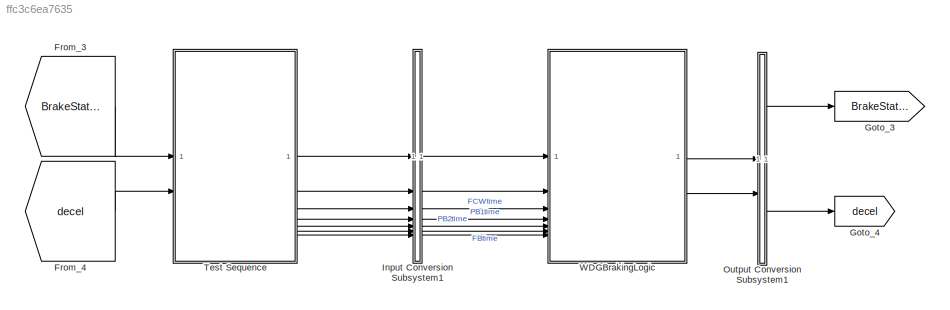
MODEL slx_ffc3c6ea7635
KIND model
BLOCK [From] From_3
  GotoTag = BrakeStatus
BLOCK [From] From_4
  GotoTag = decel
BLOCK [Goto] Goto_3
  GotoTag = BrakeStatus
BLOCK [Goto] Goto_4
  GotoTag = decel
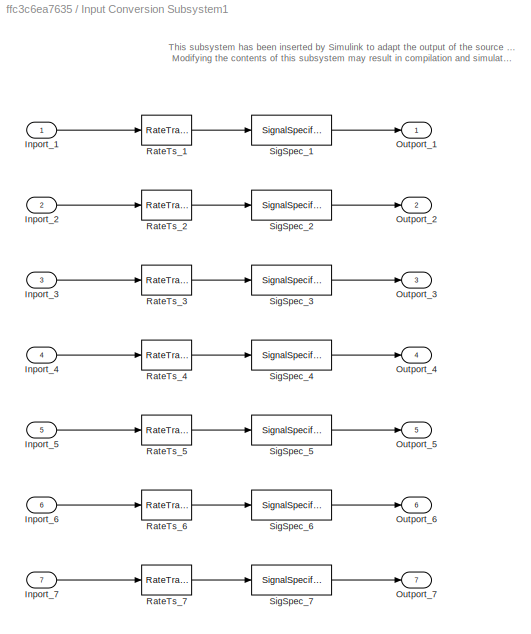
BLOCK [SubSystem] Input Conversion Subsystem1
  AttributesFormatString = %<Description>
  Description = Signal spec.\nand routing
  Permissions = ReadOnly
  PermitHierarchicalResolution = ExplicitOnly
  Tag = __SLT_ICS__
  UserDataPersistent = on
BLOCK [Inport] Input Conversion Subsystem1/Inport_1
BLOCK [Inport] Input Conversion Subsystem1/Inport_2
  Port = 2
BLOCK [Inport] Input Conversion Subsystem1/Inport_3
  Port = 3
BLOCK [Inport] Input Conversion Subsystem1/Inport_4
  Port = 4
BLOCK [Inport] Input Conversion Subsystem1/Inport_5
  Port = 5
BLOCK [Inport] Input Conversion Subsystem1/Inport_6
  Port = 6
BLOCK [Inport] Input Conversion Subsystem1/Inport_7
  Port = 7
BLOCK [Outport] Input Conversion Subsystem1/Outport_1
BLOCK [Outport] Input Conversion Subsystem1/Outport_2
  Port = 2
BLOCK [Outport] Input Conversion Subsystem1/Outport_3
  Port = 3
BLOCK [Outport] Input Conversion Subsystem1/Outport_4
  Port = 4
BLOCK [Outport] Input Conversion Subsystem1/Outport_5
  Port = 5
BLOCK [Outport] Input Conversion Subsystem1/Outport_6
  Port = 6
BLOCK [Outport] Input Conversion Subsystem1/Outport_7
  Port = 7
BLOCK [RateTransition] Input Conversion Subsystem1/RateTs_1
  OutPortSampleTime = 0.1
BLOCK [RateTransition] Input Conversion Subsystem1/RateTs_2
  OutPortSampleTime = 0.1
BLOCK [RateTransition] Input Conversion Subsystem1/RateTs_3
  OutPortSampleTime = 0.1
BLOCK [RateTransition] Input Conversion Subsystem1/RateTs_4
  OutPortSampleTime = 0.1
BLOCK [RateTransition] Input Conversion Subsystem1/RateTs_5
  OutPortSampleTime = 0.1
BLOCK [RateTransition] Input Conversion Subsystem1/RateTs_6
  OutPortSampleTime = 0.1
BLOCK [RateTransition] Input Conversion Subsystem1/RateTs_7
  OutPortSampleTime = 0.1
BLOCK [SignalSpecification] Input Conversion Subsystem1/SigSpec_1
  Dimensions = [1]
  OutDataTypeStr = double
  SampleTime = 0.1
  SignalType = real
  Unit = m
  VarSizeSig = No
BLOCK [SignalSpecification] Input Conversion Subsystem1/SigSpec_2
  Dimensions = [1]
  OutDataTypeStr = double
  SampleTime = 0.1
  SignalType = real
  Unit = s
  VarSizeSig = No
BLOCK [SignalSpecification] Input Conversion Subsystem1/SigSpec_3
  Dimensions = [1]
  OutDataTypeStr = double
  SampleTime = 0.1
  SignalType = real
  Unit = s
  VarSizeSig = No
BLOCK [SignalSpecification] Input Conversion Subsystem1/SigSpec_4
  Dimensions = [1]
  OutDataTypeStr = double
  SampleTime = 0.1
  SignalType = real
  Unit = s
  VarSizeSig = No
BLOCK [SignalSpecification] Input Conversion Subsystem1/SigSpec_5
  Dimensions = [1]
  OutDataTypeStr = double
  SampleTime = 0.1
  SignalType = real
  Unit = s
  VarSizeSig = No
BLOCK [SignalSpecification] Input Conversion Subsystem1/SigSpec_6
  Dimensions = [1]
  OutDataTypeStr = double
  SampleTime = 0.1
  SignalType = real
  Unit = s
  VarSizeSig = No
BLOCK [SignalSpecification] Input Conversion Subsystem1/SigSpec_7
  Dimensions = [1]
  OutDataTypeStr = double
  SampleTime = 0.1
  SignalType = real
  Unit = m/s
  VarSizeSig = No
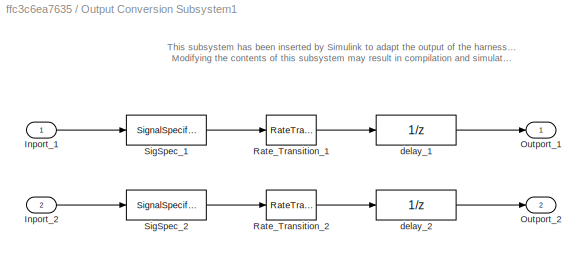
BLOCK [SubSystem] Output Conversion Subsystem1
  AttributesFormatString = %<Description>
  Description = Signal spec.\nand routing
  Permissions = ReadOnly
  PermitHierarchicalResolution = ExplicitOnly
  Tag = __SLT_OCS__
  UserDataPersistent = on
BLOCK [Inport] Output Conversion Subsystem1/Inport_1
BLOCK [Inport] Output Conversion Subsystem1/Inport_2
  Port = 2
BLOCK [Outport] Output Conversion Subsystem1/Outport_1
BLOCK [Outport] Output Conversion Subsystem1/Outport_2
  Port = 2
BLOCK [RateTransition] Output Conversion Subsystem1/Rate_Transition_1
  InitialCondition = BrStatus.NoBrake
  OutPortSampleTimeOpt = Inherit
BLOCK [RateTransition] Output Conversion Subsystem1/Rate_Transition_2
  OutPortSampleTimeOpt = Inherit
BLOCK [SignalSpecification] Output Conversion Subsystem1/SigSpec_1
  Dimensions = [1]
  OutDataTypeStr = Enum: BrStatus
  SampleTime = 0.1
  SignalType = real
  VarSizeSig = No
BLOCK [SignalSpecification] Output Conversion Subsystem1/SigSpec_2
  Dimensions = [1]
  OutDataTypeStr = double
  SampleTime = 0.1
  SignalType = real
  Unit = m/s^2
  VarSizeSig = No
BLOCK [UnitDelay] Output Conversion Subsystem1/delay_1
  InitialCondition = BrStatus.NoBrake
  SampleTime = -1
BLOCK [UnitDelay] Output Conversion Subsystem1/delay_2
  SampleTime = -1
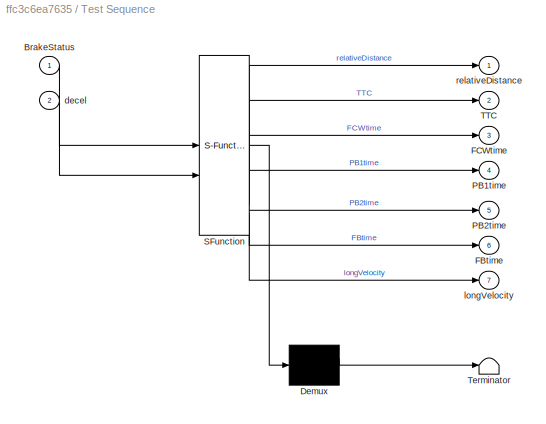
BLOCK [SubSystem] Test Sequence
  ErrorFcn = Stateflow.Translate.translate
  PermitHierarchicalResolution = ExplicitOnly
  SFBlockType = Test Sequence
  ShowPortLabels = none
  TreatAsAtomicUnit = on
BLOCK [Demux] Test Sequence/ Demux 
  Outputs = 1
BLOCK [S-Function] Test Sequence/ SFunction 
  EnableBusSupport = off
  FunctionName = sf_sfun
  PortCounts = [2 8]
  SFcnIsStateOwnerBlock = off
  SFunctionDeploymentMode = off
  Tag = Stateflow S-Function 4
BLOCK [Terminator] Test Sequence/ Terminator 
BLOCK [Inport] Test Sequence/BrakeStatus
BLOCK [Outport] Test Sequence/FBtime
  Port = 6
BLOCK [Outport] Test Sequence/FCWtime
  Port = 3
BLOCK [Outport] Test Sequence/PB1time
  Port = 4
BLOCK [Outport] Test Sequence/PB2time
  Port = 5
BLOCK [Outport] Test Sequence/TTC
  Port = 2
BLOCK [Inport] Test Sequence/decel
  Port = 2
BLOCK [Outport] Test Sequence/longVelocity
  Port = 7
BLOCK [Outport] Test Sequence/relativeDistance
BLOCK [ModelReference] WDGBrakingLogic
  ModelNameDialog = WDGBrakingLogic
  ModelReferenceVersion = 8.0
ANNOTATION Input Conversion Subsystem1: This subsystem has been inserted by Simulink to adapt the output of the source blocks to the interface required by the harnessed component. Modifying the contents of this subsystem may result in compilation and simulation failure.
ANNOTATION Output Conversion Subsystem1: This subsystem has been inserted by Simulink to adapt the output of the harnessed component to the interface required by the sink blocks. Modifying the contents of this subsystem may result in compilation and simulation failure.
LINE From_3:1 -> Test Sequence:1
LINE From_4:1 -> Test Sequence:2
LINE Input Conversion Subsystem1/Inport_1:1 -> Input Conversion Subsystem1/RateTs_1:1
LINE Input Conversion Subsystem1/Inport_2:1 -> Input Conversion Subsystem1/RateTs_2:1
LINE Input Conversion Subsystem1/Inport_3:1 -> Input Conversion Subsystem1/RateTs_3:1
LINE Input Conversion Subsystem1/Inport_4:1 -> Input Conversion Subsystem1/RateTs_4:1
LINE Input Conversion Subsystem1/Inport_5:1 -> Input Conversion Subsystem1/RateTs_5:1
LINE Input Conversion Subsystem1/Inport_6:1 -> Input Conversion Subsystem1/RateTs_6:1
LINE Input Conversion Subsystem1/Inport_7:1 -> Input Conversion Subsystem1/RateTs_7:1
LINE Input Conversion Subsystem1/RateTs_1:1 -> Input Conversion Subsystem1/SigSpec_1:1
LINE Input Conversion Subsystem1/RateTs_2:1 -> Input Conversion Subsystem1/SigSpec_2:1
LINE Input Conversion Subsystem1/RateTs_3:1 -> Input Conversion Subsystem1/SigSpec_3:1
LINE Input Conversion Subsystem1/RateTs_4:1 -> Input Conversion Subsystem1/SigSpec_4:1
LINE Input Conversion Subsystem1/RateTs_5:1 -> Input Conversion Subsystem1/SigSpec_5:1
LINE Input Conversion Subsystem1/RateTs_6:1 -> Input Conversion Subsystem1/SigSpec_6:1
LINE Input Conversion Subsystem1/RateTs_7:1 -> Input Conversion Subsystem1/SigSpec_7:1
LINE Input Conversion Subsystem1/SigSpec_1:1 -> Input Conversion Subsystem1/Outport_1:1
LINE Input Conversion Subsystem1/SigSpec_2:1 -> Input Conversion Subsystem1/Outport_2:1
LINE Input Conversion Subsystem1/SigSpec_3:1 -> Input Conversion Subsystem1/Outport_3:1
LINE Input Conversion Subsystem1/SigSpec_4:1 -> Input Conversion Subsystem1/Outport_4:1
LINE Input Conversion Subsystem1/SigSpec_5:1 -> Input Conversion Subsystem1/Outport_5:1
LINE Input Conversion Subsystem1/SigSpec_6:1 -> Input Conversion Subsystem1/Outport_6:1
LINE Input Conversion Subsystem1/SigSpec_7:1 -> Input Conversion Subsystem1/Outport_7:1
LINE Input Conversion Subsystem1:1 -> WDGBrakingLogic:1
LINE Input Conversion Subsystem1:2 -> WDGBrakingLogic:2
LINE Input Conversion Subsystem1:3 -> WDGBrakingLogic:3
LINE Input Conversion Subsystem1:4 -> WDGBrakingLogic:4
LINE Input Conversion Subsystem1:5 -> WDGBrakingLogic:5
LINE Input Conversion Subsystem1:6 -> WDGBrakingLogic:6
LINE Input Conversion Subsystem1:7 -> WDGBrakingLogic:7
LINE Output Conversion Subsystem1/Inport_1:1 -> Output Conversion Subsystem1/SigSpec_1:1
LINE Output Conversion Subsystem1/Inport_2:1 -> Output Conversion Subsystem1/SigSpec_2:1
LINE Output Conversion Subsystem1/Rate_Transition_1:1 -> Output Conversion Subsystem1/delay_1:1
LINE Output Conversion Subsystem1/Rate_Transition_2:1 -> Output Conversion Subsystem1/delay_2:1
LINE Output Conversion Subsystem1/SigSpec_1:1 -> Output Conversion Subsystem1/Rate_Transition_1:1
LINE Output Conversion Subsystem1/SigSpec_2:1 -> Output Conversion Subsystem1/Rate_Transition_2:1
LINE Output Conversion Subsystem1/delay_1:1 -> Output Conversion Subsystem1/Outport_1:1
LINE Output Conversion Subsystem1/delay_2:1 -> Output Conversion Subsystem1/Outport_2:1
LINE Output Conversion Subsystem1:1 -> Goto_3:1
LINE Output Conversion Subsystem1:2 -> Goto_4:1
LINE Test Sequence:1 -> Input Conversion Subsystem1:1
LINE Test Sequence:2 -> Input Conversion Subsystem1:2
LINE Test Sequence:3 -> Input Conversion Subsystem1:3
LINE Test Sequence:4 -> Input Conversion Subsystem1:4
LINE Test Sequence:5 -> Input Conversion Subsystem1:5
LINE Test Sequence:6 -> Input Conversion Subsystem1:6
LINE Test Sequence:7 -> Input Conversion Subsystem1:7
LINE WDGBrakingLogic:1 -> Output Conversion Subsystem1:1
LINE WDGBrakingLogic:2 -> Output Conversion Subsystem1:2
CHART Test Sequence states=10 transitions=10
  STATE_LABEL 'Run\n\n%% Initialize data outputs.\nrelativeDistance = 90;\nTTC = -9;\nFCWtime = 7.95;\nPB1time = 7.11;\nPB2time = 5.09;\nFBtime = 2.76;\nlongVelocity = 27;'
  STATE_LABEL 'step_1\n\nrelativeDistance = 80;\nTTC = -8;\nFCWtime = 7.95;\nPB1time = 7.11;\nPB2time = 5.09;\nFBtime = 2.76;\nlongVelocity = 27;\n'
  STATE_LABEL 'step_2\n\nrelativeDistance = 70;\nTTC = -7;\nFCWtime = 7.95;\nPB1time = 7.11;\nPB2time = 5.09;\nFBtime = 2.76;\nlongVelocity = 27;'
  STATE_LABEL 'step_3\n\nrelativeDistance = 60;\nTTC = -6;\nFCWtime = 7.95;\nPB1time = 7.11;\nPB2time = 5.09;\nFBtime = 2.76;\nlongVelocity = 27;'
  STATE_LABEL 'step_4\n\nrelativeDistance = 50;\nTTC = -5;\nFCWtime = 7.95;\nPB1time = 7.11;\nPB2time = 5.09;\nFBtime = 2.76;\nlongVelocity = 27;'
  STATE_LABEL 'step_5\n\nrelativeDistance = 40;\nTTC = -4;\nFCWtime = 7.95;\nPB1time = 7.11;\nPB2time = 5.09;\nFBtime = 2.76;\nlongVelocity = 27;'
  STATE_LABEL 'step_6\n\nrelativeDistance = 30;\nTTC = -3;\nFCWtime = 7.95;\nPB1time = 7.11;\nPB2time = 5.09;\nFBtime = 2.76;\nlongVelocity = 27;'
  STATE_LABEL 'step_7\n\nrelativeDistance = 20;\nTTC = -2;\nFCWtime = 7.95;\nPB1time = 7.11;\nPB2time = 5.09;\nFBtime = 2.76;\nlongVelocity = 27;'
  STATE_LABEL 'step_8\n\nrelativeDistance = 10;\nTTC = -1;\nFCWtime = 7.95;\nPB1time = 7.11;\nPB2time = 5.09;\nFBtime = 2.76;\nlongVelocity = 27;'
  STATE_LABEL 'step_9\n\nrelativeDistance = 8;\nTTC = -8;\nFCWtime = 7.95;\nPB1time = 7.11;\nPB2time = 5.09;\nFBtime = 2.76;\nlongVelocity = 27;'
